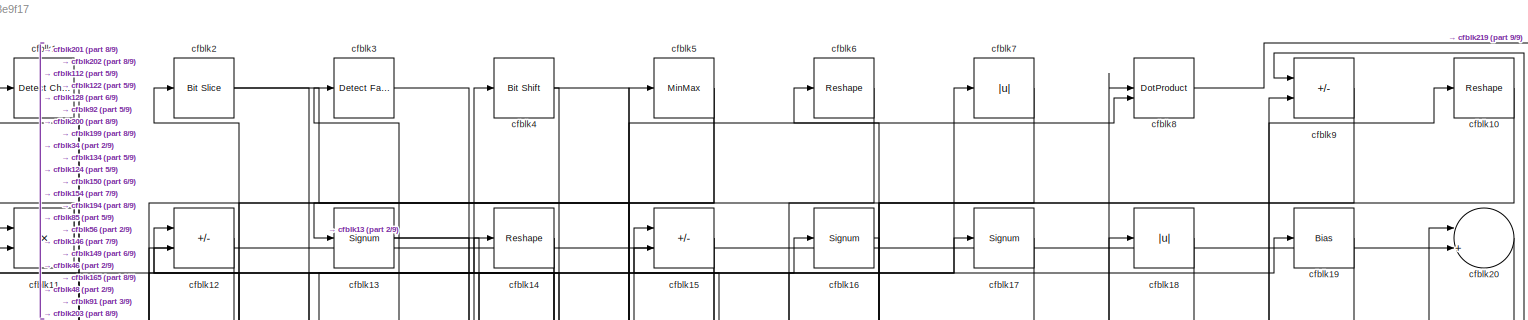
[diagram: root canvas - part 1/9, full width, top band]
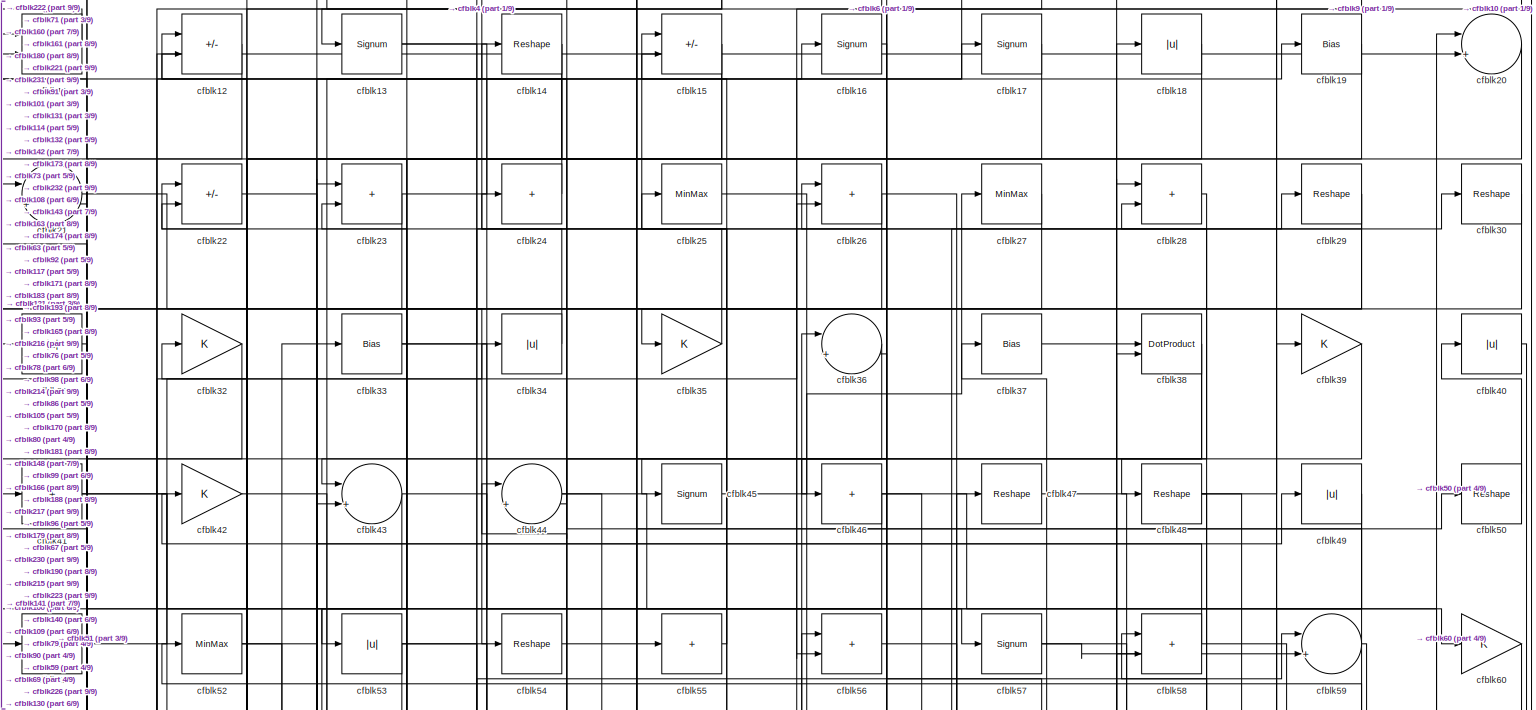
[diagram: root canvas - part 2/9, full width, top band]
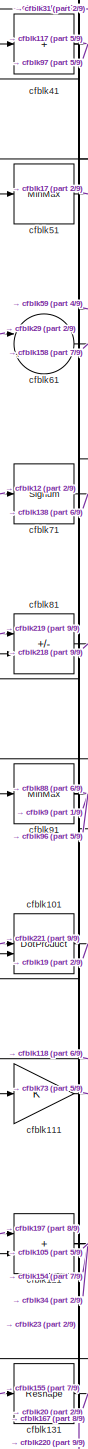
[diagram: root canvas - part 3/9, middle left region]
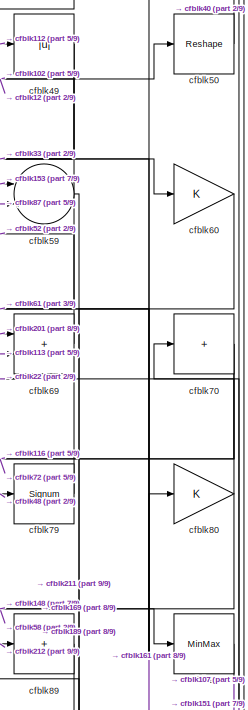
[diagram: root canvas - part 4/9, top right region]
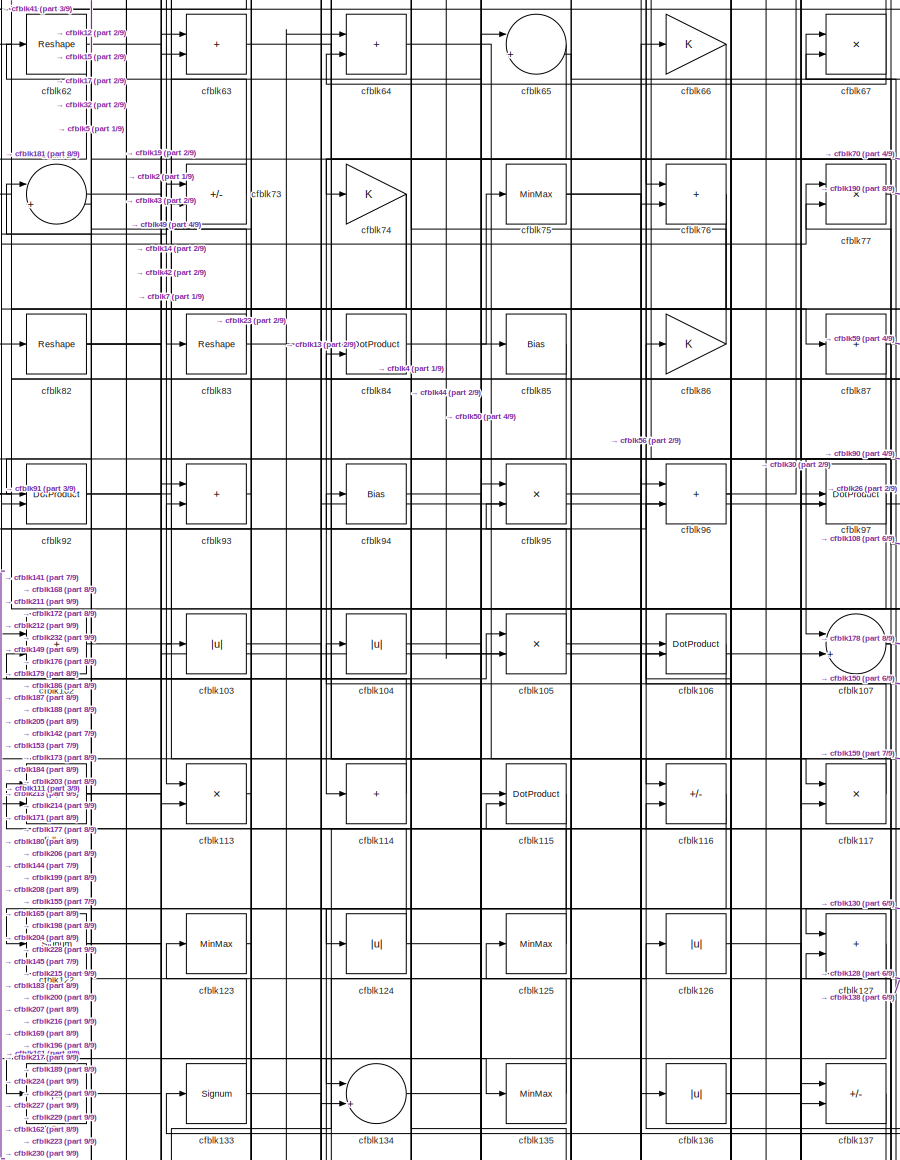
[diagram: root canvas - part 5/9, central region]
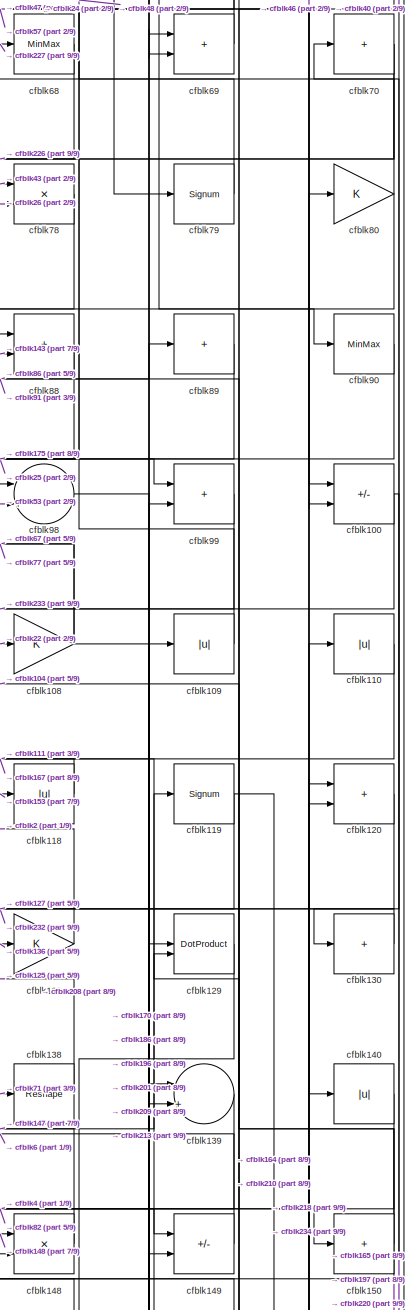
[diagram: root canvas - part 6/9, middle right region]
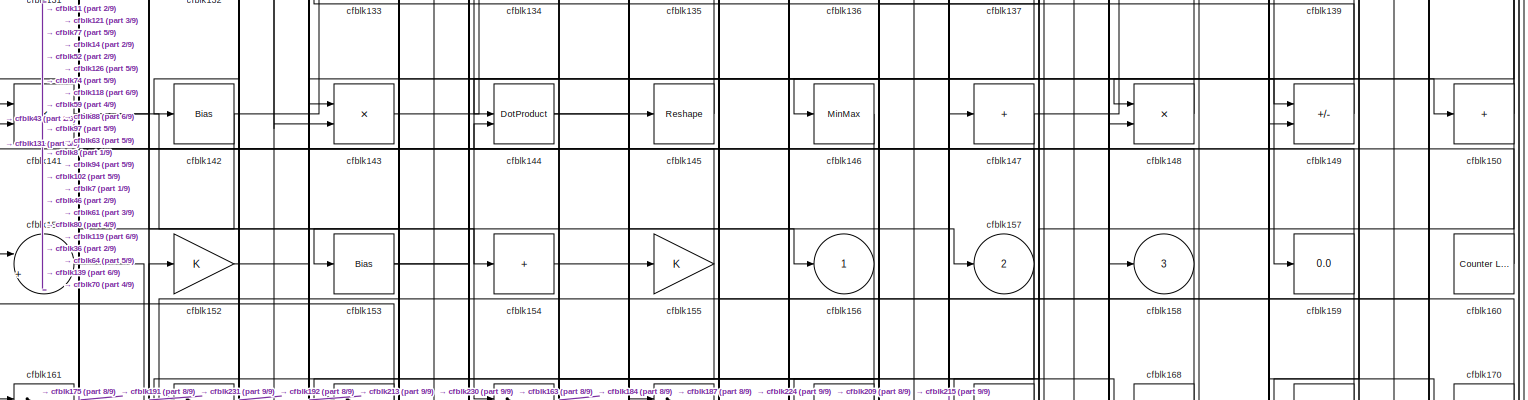
[diagram: root canvas - part 7/9, full width, middle band]
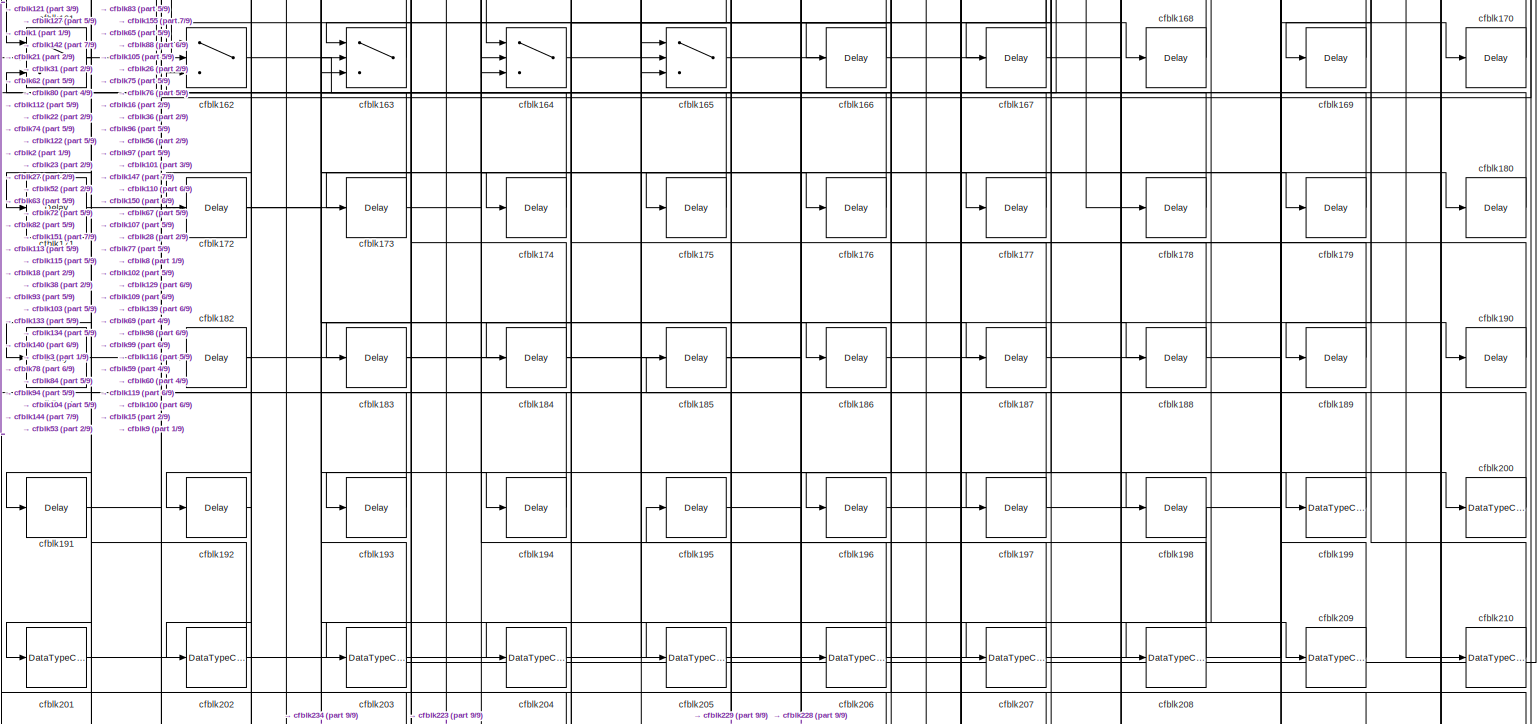
[diagram: root canvas - part 8/9, full width, bottom band]
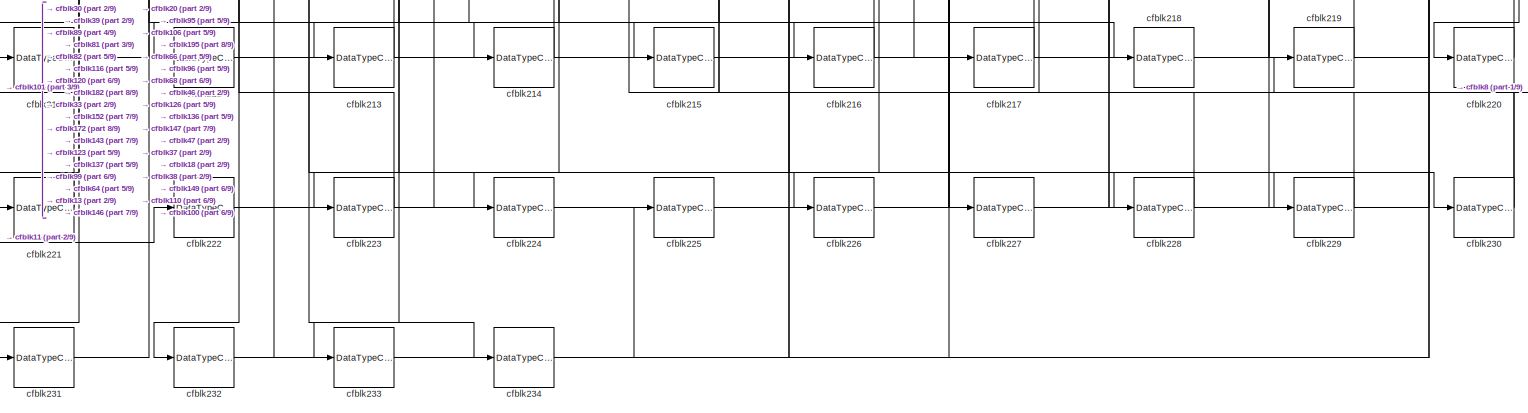
[diagram: root canvas - part 9/9, full width, bottom band]
MODEL slx_1084883e9f17
KIND model
CONFIG AbsTol = auto
CONFIG EnableMultiTasking = off
CONFIG FixedStep = auto
CONFIG MaxStep = auto
CONFIG MinStep = auto
CONFIG RelTol = 1e-3
CONFIG SampleTimeConstraint = Unconstrained
CONFIG SolverName = VariableStepAuto
CONFIG StartTime = 0.0
CONFIG StopTime = 10.0
BLOCK [Reference] cfblk1  REF=simulink/Logic and Bit
Operations/Detect
Change
  LibrarySourceBlock = hdlsllib/Logic and Bit\nOperations/Detect\nChange
  SourceBlock = simulink/Logic and Bit\nOperations/Detect\nChange
  SourceType = Detect Change
BLOCK [Reshape] cfblk10
BLOCK [Sum] cfblk100
  IconShape = rectangular
  Inputs = +-
BLOCK [DotProduct] cfblk101
  OutDataTypeStr = Inherit: Inherit via internal rule
BLOCK [Sum] cfblk102
  IconShape = rectangular
BLOCK [Abs] cfblk103
  SaturateOnIntegerOverflow = off
BLOCK [Abs] cfblk104
  SaturateOnIntegerOverflow = off
BLOCK [Product] cfblk105
  Inputs = */
  RndMeth = Zero
  SaturateOnIntegerOverflow = on
BLOCK [DotProduct] cfblk106
  OutDataTypeStr = Inherit: Inherit via internal rule
BLOCK [Sum] cfblk107
  Inputs = |++
BLOCK [Gain] cfblk108
BLOCK [Abs] cfblk109
  SaturateOnIntegerOverflow = off
BLOCK [Product] cfblk11
  Inputs = */
  RndMeth = Zero
  SaturateOnIntegerOverflow = on
BLOCK [Abs] cfblk110
  SaturateOnIntegerOverflow = off
BLOCK [Gain] cfblk111
BLOCK [Sum] cfblk112
  IconShape = rectangular
  Inputs = +-
BLOCK [Product] cfblk113
  Inputs = */
  RndMeth = Zero
  SaturateOnIntegerOverflow = on
BLOCK [Sum] cfblk114
  IconShape = rectangular
  Inputs = +
BLOCK [DotProduct] cfblk115
  OutDataTypeStr = Inherit: Inherit via internal rule
BLOCK [Sum] cfblk116
  IconShape = rectangular
  Inputs = +-
BLOCK [Product] cfblk117
  Inputs = */
  RndMeth = Zero
  SaturateOnIntegerOverflow = on
BLOCK [Abs] cfblk118
  SaturateOnIntegerOverflow = off
BLOCK [Signum] cfblk119
BLOCK [Sum] cfblk12
  IconShape = rectangular
  Inputs = +-
BLOCK [Sum] cfblk120
  IconShape = rectangular
BLOCK [Sum] cfblk121
  IconShape = rectangular
BLOCK [Signum] cfblk122
BLOCK [MinMax] cfblk123
BLOCK [Abs] cfblk124
  SaturateOnIntegerOverflow = off
BLOCK [MinMax] cfblk125
BLOCK [Abs] cfblk126
  SaturateOnIntegerOverflow = off
BLOCK [Sum] cfblk127
  IconShape = rectangular
BLOCK [Gain] cfblk128
BLOCK [DotProduct] cfblk129
  OutDataTypeStr = Inherit: Inherit via internal rule
BLOCK [Signum] cfblk13
BLOCK [Sum] cfblk130
  IconShape = rectangular
  Inputs = +
BLOCK [Reshape] cfblk131
BLOCK [Abs] cfblk132
  SaturateOnIntegerOverflow = off
BLOCK [Signum] cfblk133
BLOCK [Sum] cfblk134
  Inputs = |++
BLOCK [MinMax] cfblk135
BLOCK [Abs] cfblk136
  SaturateOnIntegerOverflow = off
BLOCK [Sum] cfblk137
  IconShape = rectangular
  Inputs = +-
BLOCK [Reshape] cfblk138
BLOCK [Sum] cfblk139
  Inputs = |++
BLOCK [Reshape] cfblk14
BLOCK [Abs] cfblk140
  SaturateOnIntegerOverflow = off
BLOCK [Product] cfblk141
  Inputs = */
  RndMeth = Zero
  SaturateOnIntegerOverflow = on
BLOCK [Bias] cfblk142
  Bias = 0.0
  SaturateOnIntegerOverflow = off
BLOCK [Product] cfblk143
  Inputs = */
  RndMeth = Zero
  SaturateOnIntegerOverflow = on
BLOCK [DotProduct] cfblk144
  OutDataTypeStr = Inherit: Inherit via internal rule
BLOCK [Reshape] cfblk145
BLOCK [MinMax] cfblk146
BLOCK [Sum] cfblk147
  IconShape = rectangular
  Inputs = +
BLOCK [Product] cfblk148
  Inputs = */
  RndMeth = Zero
  SaturateOnIntegerOverflow = on
BLOCK [Sum] cfblk149
  IconShape = rectangular
  Inputs = +-
BLOCK [Sum] cfblk15
  IconShape = rectangular
  Inputs = +-
BLOCK [Sum] cfblk150
  IconShape = rectangular
  Inputs = +
BLOCK [Sum] cfblk151
  Inputs = |++
BLOCK [Gain] cfblk152
BLOCK [Bias] cfblk153
  Bias = 0.0
  SaturateOnIntegerOverflow = off
BLOCK [Sum] cfblk154
  IconShape = rectangular
  Inputs = +
BLOCK [Gain] cfblk155
BLOCK [Outport] cfblk156
  VectorParamsAs1DForOutWhenUnconnected = off
BLOCK [Outport] cfblk157
  Port = 2
  VectorParamsAs1DForOutWhenUnconnected = off
BLOCK [Outport] cfblk158
  Port = 3
  VectorParamsAs1DForOutWhenUnconnected = off
BLOCK [Display] cfblk159
  Decimation = 1
BLOCK [Signum] cfblk16
BLOCK [Reference] cfblk160  REF=hdlsllib/Sources/Counter
Limited
  SourceBlock = hdlsllib/Sources/Counter\nLimited
  SourceType = Counter Limited
BLOCK [Switch] cfblk161
  InputSameDT = off
  SaturateOnIntegerOverflow = off
BLOCK [Switch] cfblk162
  InputSameDT = off
  SaturateOnIntegerOverflow = off
BLOCK [Switch] cfblk163
  InputSameDT = off
  SaturateOnIntegerOverflow = off
BLOCK [Switch] cfblk164
  InputSameDT = off
  SaturateOnIntegerOverflow = off
BLOCK [Switch] cfblk165
  InputSameDT = off
  SaturateOnIntegerOverflow = off
BLOCK [Delay] cfblk166
  InputPortMap = u0
  SampleTime = 1
BLOCK [Delay] cfblk167
  InputPortMap = u0
  SampleTime = 1
BLOCK [Delay] cfblk168
  InputPortMap = u0
  SampleTime = 1
BLOCK [Delay] cfblk169
  InputPortMap = u0
  SampleTime = 1
BLOCK [Signum] cfblk17
BLOCK [Delay] cfblk170
  InputPortMap = u0
  SampleTime = 1
BLOCK [Delay] cfblk171
  InputPortMap = u0
  SampleTime = 1
BLOCK [Delay] cfblk172
  InputPortMap = u0
  SampleTime = 1
BLOCK [Delay] cfblk173
  InputPortMap = u0
  SampleTime = 1
BLOCK [Delay] cfblk174
  InputPortMap = u0
  SampleTime = 1
BLOCK [Delay] cfblk175
  InputPortMap = u0
  SampleTime = 1
BLOCK [Delay] cfblk176
  InputPortMap = u0
  SampleTime = 1
BLOCK [Delay] cfblk177
  InputPortMap = u0
  SampleTime = 1
BLOCK [Delay] cfblk178
  InputPortMap = u0
  SampleTime = 1
BLOCK [Delay] cfblk179
  InputPortMap = u0
  SampleTime = 1
BLOCK [Abs] cfblk18
  SaturateOnIntegerOverflow = off
BLOCK [Delay] cfblk180
  InputPortMap = u0
  SampleTime = 1
BLOCK [Delay] cfblk181
  InputPortMap = u0
  SampleTime = 1
BLOCK [Delay] cfblk182
  InputPortMap = u0
  SampleTime = 1
BLOCK [Delay] cfblk183
  InputPortMap = u0
  SampleTime = 1
BLOCK [Delay] cfblk184
  InputPortMap = u0
  SampleTime = 1
BLOCK [Delay] cfblk185
  InputPortMap = u0
  SampleTime = 1
BLOCK [Delay] cfblk186
  InputPortMap = u0
  SampleTime = 1
BLOCK [Delay] cfblk187
  InputPortMap = u0
  SampleTime = 1
BLOCK [Delay] cfblk188
  InputPortMap = u0
  SampleTime = 1
BLOCK [Delay] cfblk189
  InputPortMap = u0
  SampleTime = 1
BLOCK [Bias] cfblk19
  Bias = 0.0
  SaturateOnIntegerOverflow = off
BLOCK [Delay] cfblk190
  InputPortMap = u0
  SampleTime = 1
BLOCK [Delay] cfblk191
  InputPortMap = u0
  SampleTime = 1
BLOCK [Delay] cfblk192
  InputPortMap = u0
  SampleTime = 1
BLOCK [Delay] cfblk193
  InputPortMap = u0
  SampleTime = 1
BLOCK [Delay] cfblk194
  InputPortMap = u0
  SampleTime = 1
BLOCK [Delay] cfblk195
  InputPortMap = u0
  SampleTime = 1
BLOCK [Delay] cfblk196
  InputPortMap = u0
  SampleTime = 1
BLOCK [Delay] cfblk197
  InputPortMap = u0
  SampleTime = 1
BLOCK [Delay] cfblk198
  InputPortMap = u0
  SampleTime = 1
BLOCK [DataTypeConversion] cfblk199
  OutDataTypeStr = uint8
  RndMeth = Floor
  SaturateOnIntegerOverflow = off
BLOCK [Reference] cfblk2  REF=hdlsllib/Logic and Bit
Operations/Bit Slice
  SourceBlock = hdlsllib/Logic and Bit\nOperations/Bit Slice
  SourceType = Bit Slice
BLOCK [Sum] cfblk20
  Inputs = |++
BLOCK [DataTypeConversion] cfblk200
  OutDataTypeStr = uint8
  RndMeth = Floor
  SaturateOnIntegerOverflow = off
BLOCK [DataTypeConversion] cfblk201
  RndMeth = Floor
  SaturateOnIntegerOverflow = off
BLOCK [DataTypeConversion] cfblk202
  OutDataTypeStr = uint8
  RndMeth = Floor
  SaturateOnIntegerOverflow = off
BLOCK [DataTypeConversion] cfblk203
  RndMeth = Floor
  SaturateOnIntegerOverflow = off
BLOCK [DataTypeConversion] cfblk204
  OutDataTypeStr = uint8
  RndMeth = Floor
  SaturateOnIntegerOverflow = off
BLOCK [DataTypeConversion] cfblk205
  OutDataTypeStr = uint8
  RndMeth = Floor
  SaturateOnIntegerOverflow = off
BLOCK [DataTypeConversion] cfblk206
  OutDataTypeStr = uint8
  RndMeth = Floor
  SaturateOnIntegerOverflow = off
BLOCK [DataTypeConversion] cfblk207
  OutDataTypeStr = uint8
  RndMeth = Floor
  SaturateOnIntegerOverflow = off
BLOCK [DataTypeConversion] cfblk208
  OutDataTypeStr = uint8
  RndMeth = Floor
  SaturateOnIntegerOverflow = off
BLOCK [DataTypeConversion] cfblk209
  OutDataTypeStr = uint8
  RndMeth = Floor
  SaturateOnIntegerOverflow = off
BLOCK [Sum] cfblk21
  Inputs = |++
BLOCK [DataTypeConversion] cfblk210
  OutDataTypeStr = uint8
  RndMeth = Floor
  SaturateOnIntegerOverflow = off
BLOCK [DataTypeConversion] cfblk211
  OutDataTypeStr = uint8
  RndMeth = Floor
  SaturateOnIntegerOverflow = off
BLOCK [DataTypeConversion] cfblk212
  OutDataTypeStr = uint8
  RndMeth = Floor
  SaturateOnIntegerOverflow = off
BLOCK [DataTypeConversion] cfblk213
  RndMeth = Floor
  SaturateOnIntegerOverflow = off
BLOCK [DataTypeConversion] cfblk214
  OutDataTypeStr = uint8
  RndMeth = Floor
  SaturateOnIntegerOverflow = off
BLOCK [DataTypeConversion] cfblk215
  RndMeth = Floor
  SaturateOnIntegerOverflow = off
BLOCK [DataTypeConversion] cfblk216
  OutDataTypeStr = uint8
  RndMeth = Floor
  SaturateOnIntegerOverflow = off
BLOCK [DataTypeConversion] cfblk217
  OutDataTypeStr = uint8
  RndMeth = Floor
  SaturateOnIntegerOverflow = off
BLOCK [DataTypeConversion] cfblk218
  OutDataTypeStr = uint8
  RndMeth = Floor
  SaturateOnIntegerOverflow = off
BLOCK [DataTypeConversion] cfblk219
  OutDataTypeStr = uint8
  RndMeth = Floor
  SaturateOnIntegerOverflow = off
BLOCK [Sum] cfblk22
  IconShape = rectangular
  Inputs = +-
BLOCK [DataTypeConversion] cfblk220
  OutDataTypeStr = uint8
  RndMeth = Floor
  SaturateOnIntegerOverflow = off
BLOCK [DataTypeConversion] cfblk221
  OutDataTypeStr = uint8
  RndMeth = Floor
  SaturateOnIntegerOverflow = off
BLOCK [DataTypeConversion] cfblk222
  OutDataTypeStr = uint8
  RndMeth = Floor
  SaturateOnIntegerOverflow = off
BLOCK [DataTypeConversion] cfblk223
  RndMeth = Floor
  SaturateOnIntegerOverflow = off
BLOCK [DataTypeConversion] cfblk224
  OutDataTypeStr = uint8
  RndMeth = Floor
  SaturateOnIntegerOverflow = off
BLOCK [DataTypeConversion] cfblk225
  OutDataTypeStr = uint8
  RndMeth = Floor
  SaturateOnIntegerOverflow = off
BLOCK [DataTypeConversion] cfblk226
  OutDataTypeStr = uint8
  RndMeth = Floor
  SaturateOnIntegerOverflow = off
BLOCK [DataTypeConversion] cfblk227
  OutDataTypeStr = uint8
  RndMeth = Floor
  SaturateOnIntegerOverflow = off
BLOCK [DataTypeConversion] cfblk228
  OutDataTypeStr = uint8
  RndMeth = Floor
  SaturateOnIntegerOverflow = off
BLOCK [DataTypeConversion] cfblk229
  OutDataTypeStr = uint8
  RndMeth = Floor
  SaturateOnIntegerOverflow = off
BLOCK [Sum] cfblk23
  IconShape = rectangular
BLOCK [DataTypeConversion] cfblk230
  RndMeth = Floor
  SaturateOnIntegerOverflow = off
BLOCK [DataTypeConversion] cfblk231
  OutDataTypeStr = uint8
  RndMeth = Floor
  SaturateOnIntegerOverflow = off
BLOCK [DataTypeConversion] cfblk232
  RndMeth = Floor
  SaturateOnIntegerOverflow = off
BLOCK [DataTypeConversion] cfblk233
  OutDataTypeStr = uint8
  RndMeth = Floor
  SaturateOnIntegerOverflow = off
BLOCK [DataTypeConversion] cfblk234
  OutDataTypeStr = uint8
  RndMeth = Floor
  SaturateOnIntegerOverflow = off
BLOCK [Sum] cfblk24
  IconShape = rectangular
  Inputs = +
BLOCK [MinMax] cfblk25
BLOCK [Sum] cfblk26
  IconShape = rectangular
BLOCK [MinMax] cfblk27
BLOCK [Sum] cfblk28
  IconShape = rectangular
BLOCK [Reshape] cfblk29
BLOCK [Reference] cfblk3  REF=hdlsllib/Logic and Bit
Operations/Detect Fall
Nonpositive
  SourceBlock = hdlsllib/Logic and Bit\nOperations/Detect Fall\nNonpositive
  SourceType = Detect Fall Nonpositive
BLOCK [Reshape] cfblk30
BLOCK [Abs] cfblk31
  SaturateOnIntegerOverflow = off
BLOCK [Gain] cfblk32
BLOCK [Bias] cfblk33
  Bias = 0.0
  SaturateOnIntegerOverflow = off
BLOCK [Abs] cfblk34
  SaturateOnIntegerOverflow = off
BLOCK [Gain] cfblk35
BLOCK [Sum] cfblk36
  Inputs = |++
BLOCK [Bias] cfblk37
  Bias = 0.0
  SaturateOnIntegerOverflow = off
BLOCK [DotProduct] cfblk38
  OutDataTypeStr = Inherit: Inherit via internal rule
BLOCK [Gain] cfblk39
BLOCK [Reference] cfblk4  REF=hdlsllib/Logic and Bit
Operations/Bit Shift
  SourceBlock = hdlsllib/Logic and Bit\nOperations/Bit Shift
  SourceType = Bit Shift
BLOCK [Abs] cfblk40
  SaturateOnIntegerOverflow = off
BLOCK [Sum] cfblk41
  IconShape = rectangular
  Inputs = +
BLOCK [Gain] cfblk42
BLOCK [Sum] cfblk43
  Inputs = |++
BLOCK [Sum] cfblk44
  Inputs = |++
BLOCK [Signum] cfblk45
BLOCK [Sum] cfblk46
  IconShape = rectangular
  Inputs = +
BLOCK [Reshape] cfblk47
BLOCK [Reshape] cfblk48
BLOCK [Abs] cfblk49
  SaturateOnIntegerOverflow = off
BLOCK [MinMax] cfblk5
BLOCK [Reshape] cfblk50
BLOCK [MinMax] cfblk51
BLOCK [MinMax] cfblk52
BLOCK [Abs] cfblk53
  SaturateOnIntegerOverflow = off
BLOCK [Reshape] cfblk54
BLOCK [Sum] cfblk55
  IconShape = rectangular
  Inputs = +
BLOCK [Sum] cfblk56
  IconShape = rectangular
BLOCK [Signum] cfblk57
BLOCK [Sum] cfblk58
  IconShape = rectangular
BLOCK [Sum] cfblk59
  Inputs = |++
BLOCK [Reshape] cfblk6
BLOCK [Gain] cfblk60
BLOCK [Sum] cfblk61
  Inputs = |++
BLOCK [Reshape] cfblk62
BLOCK [Sum] cfblk63
  IconShape = rectangular
BLOCK [Sum] cfblk64
  IconShape = rectangular
BLOCK [Sum] cfblk65
  Inputs = |++
BLOCK [Gain] cfblk66
BLOCK [Product] cfblk67
  Inputs = */
  RndMeth = Zero
  SaturateOnIntegerOverflow = on
BLOCK [MinMax] cfblk68
BLOCK [Sum] cfblk69
  IconShape = rectangular
BLOCK [Abs] cfblk7
  SaturateOnIntegerOverflow = off
BLOCK [Sum] cfblk70
  IconShape = rectangular
  Inputs = +
BLOCK [Signum] cfblk71
BLOCK [Sum] cfblk72
  Inputs = |++
BLOCK [Sum] cfblk73
  IconShape = rectangular
  Inputs = +-
BLOCK [Gain] cfblk74
BLOCK [MinMax] cfblk75
BLOCK [Sum] cfblk76
  IconShape = rectangular
BLOCK [Product] cfblk77
  Inputs = */
  RndMeth = Zero
  SaturateOnIntegerOverflow = on
BLOCK [Product] cfblk78
  Inputs = */
  RndMeth = Zero
  SaturateOnIntegerOverflow = on
BLOCK [Signum] cfblk79
BLOCK [DotProduct] cfblk8
  OutDataTypeStr = Inherit: Inherit via internal rule
BLOCK [Gain] cfblk80
BLOCK [Sum] cfblk81
  IconShape = rectangular
  Inputs = +-
BLOCK [Reshape] cfblk82
BLOCK [Reshape] cfblk83
BLOCK [DotProduct] cfblk84
  OutDataTypeStr = Inherit: Inherit via internal rule
BLOCK [Bias] cfblk85
  Bias = 0.0
  SaturateOnIntegerOverflow = off
BLOCK [Gain] cfblk86
BLOCK [Sum] cfblk87
  IconShape = rectangular
  Inputs = +
BLOCK [Sum] cfblk88
  IconShape = rectangular
BLOCK [Sum] cfblk89
  IconShape = rectangular
  Inputs = +
BLOCK [Sum] cfblk9
  IconShape = rectangular
  Inputs = +-
BLOCK [MinMax] cfblk90
BLOCK [MinMax] cfblk91
BLOCK [DotProduct] cfblk92
  OutDataTypeStr = Inherit: Inherit via internal rule
BLOCK [Sum] cfblk93
  IconShape = rectangular
BLOCK [Bias] cfblk94
  Bias = 0.0
  SaturateOnIntegerOverflow = off
BLOCK [Product] cfblk95
  Inputs = */
  RndMeth = Zero
  SaturateOnIntegerOverflow = on
BLOCK [Sum] cfblk96
  IconShape = rectangular
BLOCK [DotProduct] cfblk97
  OutDataTypeStr = Inherit: Inherit via internal rule
BLOCK [Sum] cfblk98
  Inputs = |++
BLOCK [Sum] cfblk99
  IconShape = rectangular
NET cfblk100:1 -> cfblk165:2, cfblk220:1
LINE cfblk101:1 -> cfblk19:1
LINE cfblk102:1 -> cfblk50:1
LINE cfblk103:1 -> cfblk180:1
LINE cfblk104:1 -> cfblk198:1
NET cfblk105:1 -> cfblk200:1, cfblk41:1
LINE cfblk106:1 -> cfblk215:1
NET cfblk107:1 -> cfblk133:1, cfblk178:1
NET cfblk108:1 -> cfblk139:1, cfblk67:2, cfblk77:1
LINE cfblk109:1 -> cfblk24:1
LINE cfblk10:1 -> cfblk13:1
LINE cfblk110:1 -> cfblk167:1
LINE cfblk111:1 -> cfblk73:1
NET cfblk112:1 -> cfblk172:1, cfblk176:1, cfblk49:1
LINE cfblk113:1 -> cfblk173:1
LINE cfblk114:1 -> cfblk32:1
LINE cfblk115:1 -> cfblk203:1
LINE cfblk116:1 -> cfblk212:1
LINE cfblk117:1 -> cfblk56:1
LINE cfblk118:1 -> cfblk111:1
NET cfblk119:1 -> cfblk164:1, cfblk210:1
LINE cfblk11:1 -> cfblk222:1
LINE cfblk120:1 -> cfblk232:1
NET cfblk121:1 -> cfblk105:1, cfblk154:1, cfblk34:1
NET cfblk122:1 -> cfblk186:1, cfblk187:1
LINE cfblk123:1 -> cfblk213:1
NET cfblk124:1 -> cfblk5:1, cfblk73:2
LINE cfblk125:1 -> cfblk72:1
LINE cfblk126:1 -> cfblk227:1
LINE cfblk127:1 -> cfblk161:1
LINE cfblk128:1 -> cfblk2:1
LINE cfblk129:1 -> cfblk208:1
LINE cfblk12:1 -> cfblk71:1
LINE cfblk130:1 -> cfblk127:1
LINE cfblk131:1 -> cfblk20:2
LINE cfblk132:1 -> cfblk43:2
NET cfblk133:1 -> cfblk112:1, cfblk177:1
LINE cfblk134:1 -> cfblk65:1
LINE cfblk135:1 -> cfblk103:1
NET cfblk136:1 -> cfblk128:1, cfblk229:1
LINE cfblk137:1 -> cfblk223:1
LINE cfblk138:1 -> cfblk125:1
LINE cfblk139:1 -> cfblk148:1
NET cfblk13:1 -> cfblk216:1, cfblk76:1
LINE cfblk140:1 -> cfblk164:3
NET cfblk141:1 -> cfblk157:1, cfblk77:2
NET cfblk142:1 -> cfblk126:1, cfblk191:1
LINE cfblk143:1 -> cfblk88:2
NET cfblk144:1 -> cfblk156:1, cfblk209:1
LINE cfblk145:1 -> cfblk102:2
LINE cfblk146:1 -> cfblk224:1
NET cfblk147:1 -> cfblk119:1, cfblk192:1
LINE cfblk148:1 -> cfblk36:1
LINE cfblk149:1 -> cfblk6:1
NET cfblk14:1 -> cfblk142:1, cfblk43:1
NET cfblk150:1 -> cfblk104:1, cfblk197:1, cfblk86:1
LINE cfblk151:1 -> cfblk70:1
LINE cfblk152:1 -> cfblk230:1
NET cfblk153:1 -> cfblk118:1, cfblk59:1
LINE cfblk154:1 -> cfblk8:2
NET cfblk155:1 -> cfblk131:1, cfblk184:1
NET cfblk15:1 -> cfblk21:2, cfblk92:1
LINE cfblk160:1 -> cfblk11:2
NET cfblk161:1 -> cfblk31:1, cfblk80:1
LINE cfblk162:1 -> cfblk67:1
LINE cfblk163:1 -> cfblk151:1
LINE cfblk164:1 -> cfblk168:1
LINE cfblk165:1 -> cfblk8:1
LINE cfblk166:1 -> cfblk163:1
LINE cfblk167:1 -> cfblk101:2
LINE cfblk168:1 -> cfblk102:1
LINE cfblk169:1 -> cfblk116:2
LINE cfblk16:1 -> cfblk166:1
LINE cfblk170:1 -> cfblk15:2
LINE cfblk171:1 -> cfblk134:2
LINE cfblk172:1 -> cfblk234:1
LINE cfblk173:1 -> cfblk22:2
LINE cfblk174:1 -> cfblk163:2
LINE cfblk175:1 -> cfblk151:2
LINE cfblk176:1 -> cfblk65:2
LINE cfblk177:1 -> cfblk161:2
LINE cfblk178:1 -> cfblk127:2
LINE cfblk179:1 -> cfblk63:1
LINE cfblk17:1 -> cfblk132:1
LINE cfblk180:1 -> cfblk21:1
LINE cfblk181:1 -> cfblk26:2
LINE cfblk182:1 -> cfblk202:1
LINE cfblk183:1 -> cfblk76:2
LINE cfblk184:1 -> cfblk93:2
LINE cfblk185:1 -> cfblk206:1
LINE cfblk186:1 -> cfblk99:2
LINE cfblk187:1 -> cfblk144:2
LINE cfblk188:1 -> cfblk36:2
LINE cfblk189:1 -> cfblk97:1
LINE cfblk18:1 -> cfblk193:1
LINE cfblk190:1 -> cfblk28:1
LINE cfblk191:1 -> cfblk162:2
LINE cfblk192:1 -> cfblk162:3
LINE cfblk193:1 -> cfblk23:1
LINE cfblk194:1 -> cfblk161:3
LINE cfblk195:1 -> cfblk228:1
LINE cfblk196:1 -> cfblk139:2
LINE cfblk197:1 -> cfblk121:1
LINE cfblk198:1 -> cfblk204:1
LINE cfblk199:1 -> cfblk94:1
LINE cfblk19:1 -> cfblk63:2
LINE cfblk1:1 -> cfblk201:1
LINE cfblk200:1 -> cfblk3:1
NET cfblk201:1 -> cfblk109:1, cfblk69:1
LINE cfblk202:1 -> cfblk1:1
NET cfblk203:1 -> cfblk93:1, cfblk9:1
LINE cfblk204:1 -> cfblk115:1
LINE cfblk205:1 -> cfblk115:2
LINE cfblk206:1 -> cfblk84:1
LINE cfblk207:1 -> cfblk185:1
LINE cfblk208:1 -> cfblk84:2
LINE cfblk209:1 -> cfblk129:1
LINE cfblk20:1 -> cfblk214:1
LINE cfblk210:1 -> cfblk129:2
LINE cfblk211:1 -> cfblk82:1
LINE cfblk212:1 -> cfblk89:1
NET cfblk213:1 -> cfblk143:1, cfblk149:2
LINE cfblk214:1 -> cfblk123:1
NET cfblk215:1 -> cfblk147:1, cfblk18:1
LINE cfblk216:1 -> cfblk106:1
LINE cfblk217:1 -> cfblk106:2
LINE cfblk218:1 -> cfblk110:1
LINE cfblk219:1 -> cfblk81:1
LINE cfblk21:1 -> cfblk54:1
LINE cfblk220:1 -> cfblk81:2
LINE cfblk221:1 -> cfblk101:1
LINE cfblk222:1 -> cfblk39:1
NET cfblk223:1 -> cfblk182:1, cfblk38:2, cfblk64:1
LINE cfblk224:1 -> cfblk137:1
LINE cfblk225:1 -> cfblk137:2
LINE cfblk226:1 -> cfblk20:1
LINE cfblk227:1 -> cfblk68:1
LINE cfblk228:1 -> cfblk95:1
LINE cfblk229:1 -> cfblk195:1
LINE cfblk22:1 -> cfblk108:1
NET cfblk230:1 -> cfblk37:1, cfblk95:2
LINE cfblk231:1 -> cfblk152:1
NET cfblk232:1 -> cfblk225:1, cfblk33:1, cfblk47:1, cfblk66:1, cfblk96:1
LINE cfblk233:1 -> cfblk120:1
LINE cfblk234:1 -> cfblk120:2
NET cfblk23:1 -> cfblk121:2, cfblk16:1
LINE cfblk24:1 -> cfblk11:1
LINE cfblk25:1 -> cfblk99:1
NET cfblk26:1 -> cfblk35:1, cfblk78:2
LINE cfblk27:1 -> cfblk163:3
LINE cfblk28:1 -> cfblk48:1
NET cfblk29:1 -> cfblk28:2, cfblk53:1, cfblk61:1
NET cfblk2:1 -> cfblk194:1, cfblk85:1
LINE cfblk30:1 -> cfblk231:1
LINE cfblk31:1 -> cfblk91:1
LINE cfblk32:1 -> cfblk51:1
NET cfblk33:1 -> cfblk29:1, cfblk60:1
LINE cfblk34:1 -> cfblk4:1
LINE cfblk35:1 -> cfblk15:1
LINE cfblk36:1 -> cfblk45:1
LINE cfblk37:1 -> cfblk38:1
NET cfblk38:1 -> cfblk183:1, cfblk44:2
LINE cfblk39:1 -> cfblk221:1
LINE cfblk3:1 -> cfblk199:1
LINE cfblk40:1 -> cfblk130:1
NET cfblk41:1 -> cfblk117:2, cfblk97:2
LINE cfblk42:1 -> cfblk117:1
NET cfblk43:1 -> cfblk141:2, cfblk78:1
NET cfblk44:1 -> cfblk105:2, cfblk57:1
LINE cfblk45:1 -> cfblk27:1
NET cfblk46:1 -> cfblk100:2, cfblk141:1, cfblk217:1
LINE cfblk47:1 -> cfblk100:1
NET cfblk48:1 -> cfblk10:1, cfblk79:1, cfblk98:1
NET cfblk49:1 -> cfblk113:1, cfblk69:2
NET cfblk4:1 -> cfblk134:1, cfblk150:1
LINE cfblk50:1 -> cfblk40:1
LINE cfblk51:1 -> cfblk17:1
NET cfblk52:1 -> cfblk143:2, cfblk174:1
NET cfblk53:1 -> cfblk165:3, cfblk171:1, cfblk98:2
LINE cfblk54:1 -> cfblk55:1
LINE cfblk55:1 -> cfblk25:1
LINE cfblk56:1 -> cfblk179:1
NET cfblk57:1 -> cfblk140:1, cfblk58:2
NET cfblk58:1 -> cfblk42:1, cfblk90:1
NET cfblk59:1 -> cfblk12:2, cfblk189:1, cfblk61:2
NET cfblk5:1 -> cfblk112:2, cfblk122:1
LINE cfblk60:1 -> cfblk169:1
LINE cfblk61:1 -> cfblk158:1
NET cfblk62:1 -> cfblk135:1, cfblk181:1
LINE cfblk63:1 -> cfblk145:1
LINE cfblk64:1 -> cfblk159:1
LINE cfblk65:1 -> cfblk74:1
LINE cfblk66:1 -> cfblk114:1
NET cfblk67:1 -> cfblk26:1, cfblk64:2
LINE cfblk68:1 -> cfblk226:1
LINE cfblk69:1 -> cfblk52:1
LINE cfblk6:1 -> cfblk56:2
NET cfblk70:1 -> cfblk116:1, cfblk72:2
LINE cfblk71:1 -> cfblk138:1
LINE cfblk72:1 -> cfblk188:1
LINE cfblk73:1 -> cfblk12:1
NET cfblk74:1 -> cfblk153:1, cfblk162:1
NET cfblk75:1 -> cfblk207:1, cfblk87:1
NET cfblk76:1 -> cfblk83:1, cfblk92:2
LINE cfblk77:1 -> cfblk190:1
LINE cfblk78:1 -> cfblk164:2
LINE cfblk79:1 -> cfblk58:1
LINE cfblk7:1 -> cfblk146:1
NET cfblk80:1 -> cfblk148:2, cfblk22:1
LINE cfblk81:1 -> cfblk218:1
NET cfblk82:1 -> cfblk107:2, cfblk149:1, cfblk205:1
NET cfblk83:1 -> cfblk165:1, cfblk62:1
LINE cfblk84:1 -> cfblk75:1
LINE cfblk85:1 -> cfblk113:2
LINE cfblk86:1 -> cfblk44:1
NET cfblk87:1 -> cfblk124:1, cfblk59:2
LINE cfblk88:1 -> cfblk175:1
LINE cfblk89:1 -> cfblk211:1
LINE cfblk8:1 -> cfblk219:1
LINE cfblk90:1 -> cfblk107:1
NET cfblk91:1 -> cfblk88:1, cfblk96:2, cfblk9:2
NET cfblk92:1 -> cfblk14:1, cfblk7:1
LINE cfblk93:1 -> cfblk23:2
LINE cfblk94:1 -> cfblk155:1
LINE cfblk95:1 -> cfblk136:1
NET cfblk96:1 -> cfblk196:1, cfblk30:1
LINE cfblk97:1 -> cfblk144:1
LINE cfblk98:1 -> cfblk170:1
LINE cfblk99:1 -> cfblk233:1
LINE cfblk9:1 -> cfblk46:1
note: NET lines group one-source signal fan-out (src -> all destinations, sorted); 1:1 wires keep LINE
